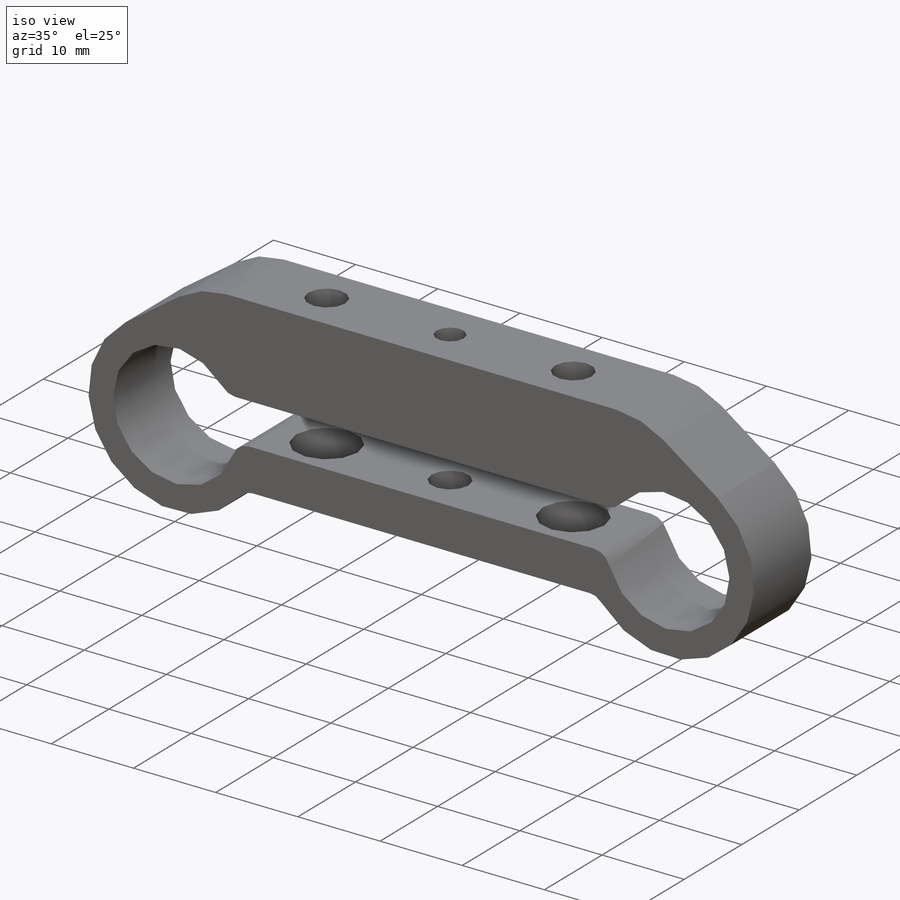
[diagram: iso view]
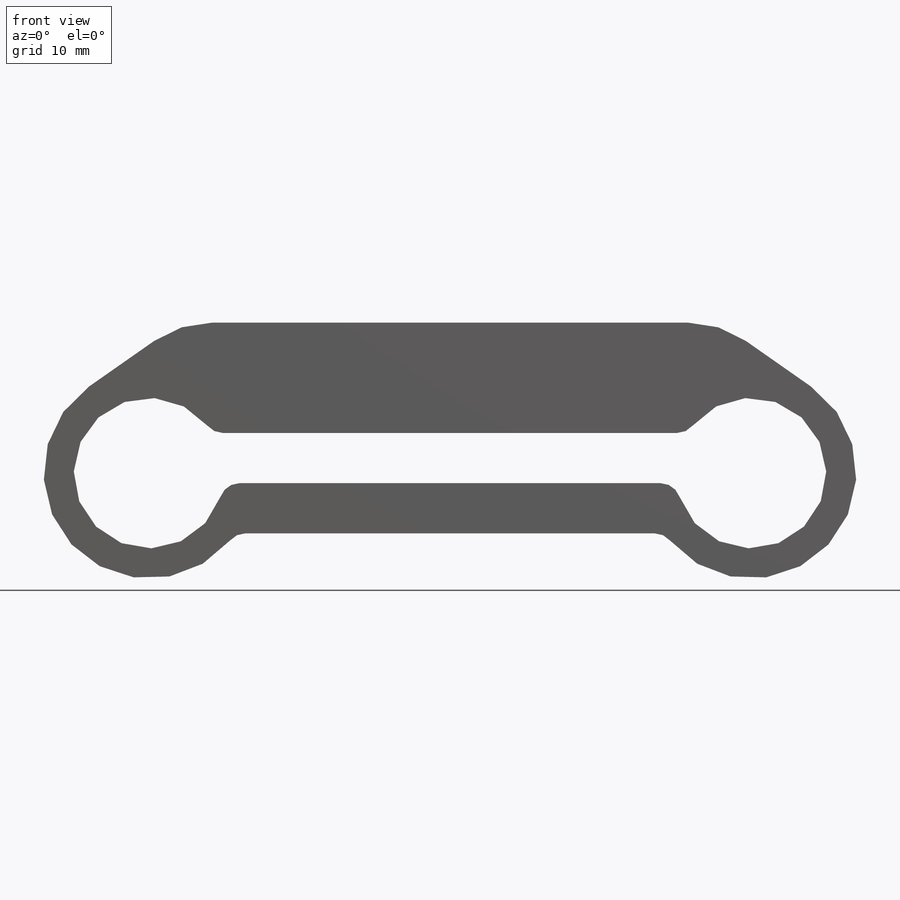
[diagram: front view]
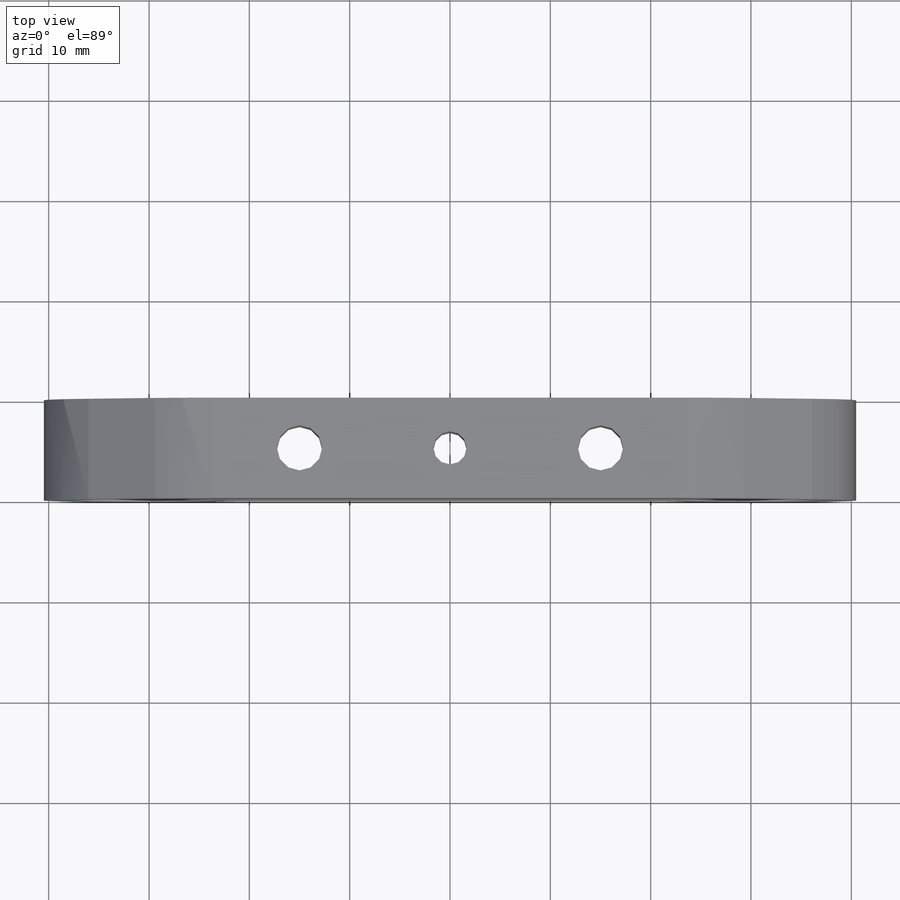
[diagram: top view]
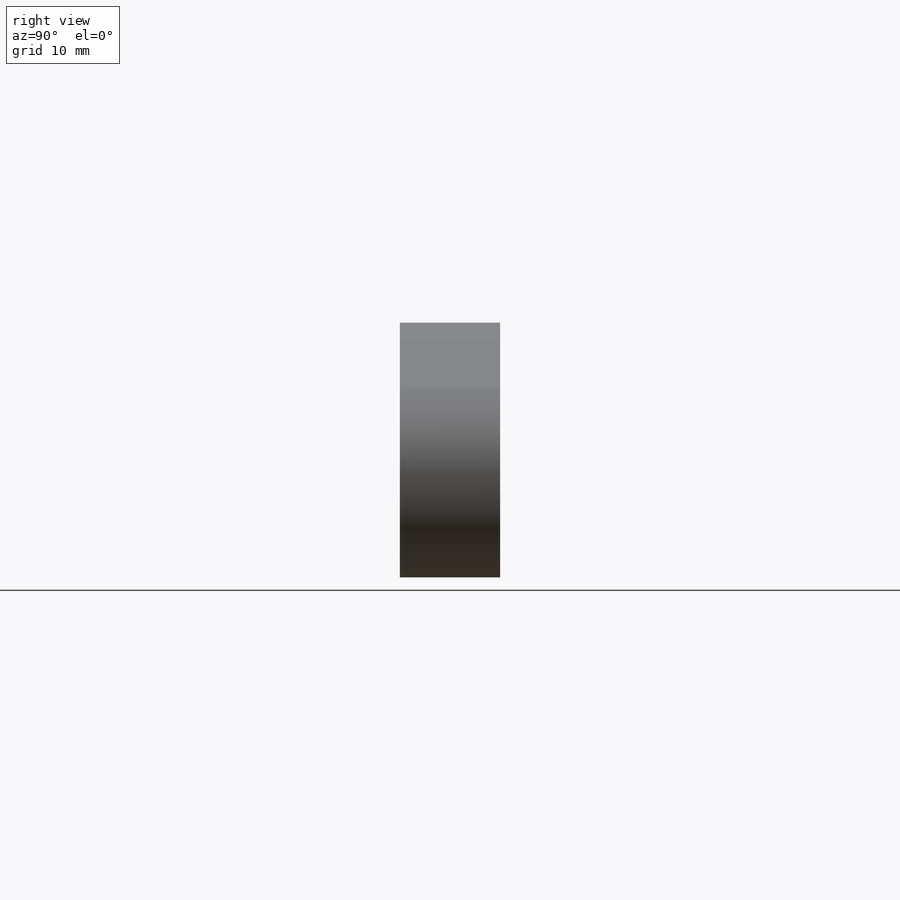
[diagram: right view]
SOLIDWORKS PART (.sldprt)
format: sldprt  version: not decoded by parser v0  size: 368,640 bytes
history: native  units: mm
features: sketch x9, plane x3, hole x3, fillet x2, material x1, extrude x1, cut_extrude x1, thread x1 (+8 scaffold rows collapsed)
feature tree (29):
  scaffold x8  (default folders/planes/origin — collapsed)
  material  "Сплав 2024"
  plane  "Спереди"
  plane  "Сверху"
  plane  "Справа"
  sketch  "Эскиз1"  dims[c1.D1=15.0mm c1.D2=15.0mm c1.D3=30.0mm c1.D4=60.0mm c1.D5=~19.761656mm c2.D5=40.0deg c2.D6=15.0mm c2.D8=~23.196093mm c3.D8=35.0deg c3.D9=~17.071039mm c4.D9=35.0deg c4.D10=11.0mm c4.D11=5.0mm c4.D12=5.0mm c4.D5=3.0mm c4.D7=3.0mm]
  extrude  "Бобышка-Вытянуть1"  Depth=10mm
  sketch  "Эскиз2"  dims[D1=15.0mm D2=15.0mm]
  sketch  "Эскиз3"  dims[D1=7.5mm D2=7.5mm]
  cut_extrude  "Вырез-Вытянуть1"  [1 undecoded]
  hole  "Отверстие с зазором M41"  [1 undecoded]
  sketch  "Эскиз5"
  sketch  "Эскиз4"  dims[hole-wizard template sketch: 60 standard entries collapsed; hole parameters kept: c18.Глубина сквозного отверстия=11.0mm]
  hole  "Отверстие с зазором M42"  [1 undecoded]
  sketch  "Эскиз7"
  sketch  "Эскиз8"  dims[hole-wizard template sketch: 60 standard entries collapsed; hole parameters kept: c18.Глубина сквозного отверстия=5.0mm]
  hole  "Отверстие обработанное метчиком M4x0.71"  [1 undecoded]
  sketch  "Эскиз10"
  sketch  "Эскиз9"  dims[hole-wizard template sketch: 60 standard entries collapsed; hole parameters kept: c18.Глубина проходного сверла=11.0mm]
  thread  "Отверстие резьбы1"  Diameter=4mm  [1 undecoded]
  fillet  "Скругление1"  Radius=10mm
  fillet  "Скругление2"  Radius=2mm
decode coverage: 10 of 17 modeling features carry decoded parameters
note: ~ marks probable driven/reference dimensions
note: 5 parameter values undecoded
summary: no parameter record found for 4 features
note: suppression state not decoded; provenance and decode notes live in map.json
